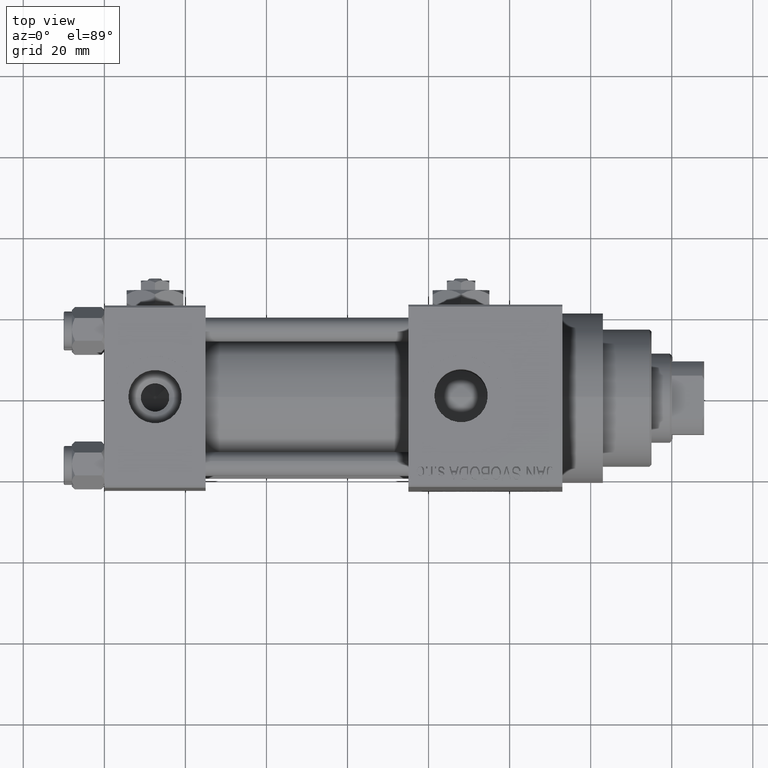
[diagram: clean part render]
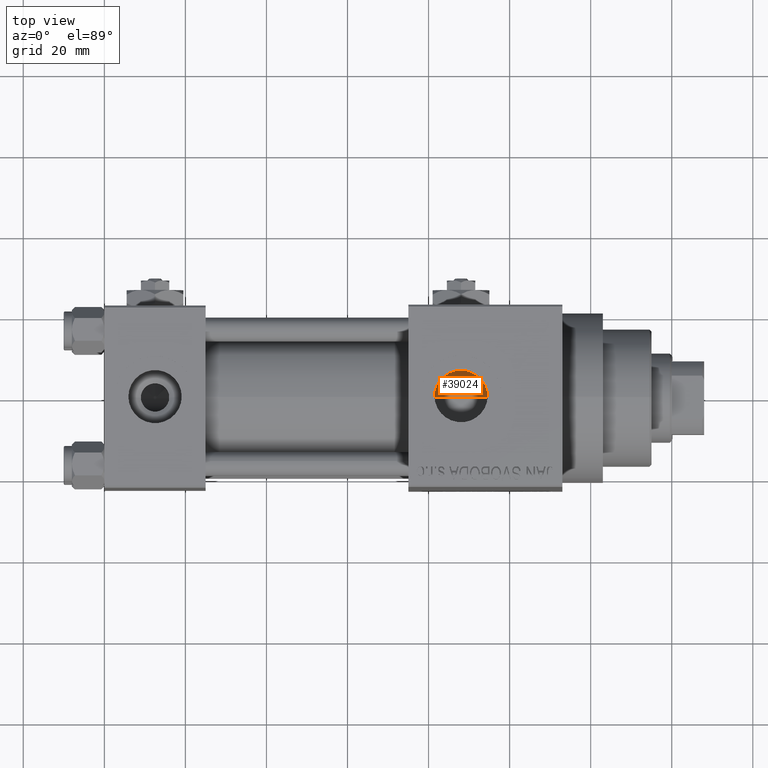
[diagram: same view with one face highlighted and labeled with its STEP entity id]
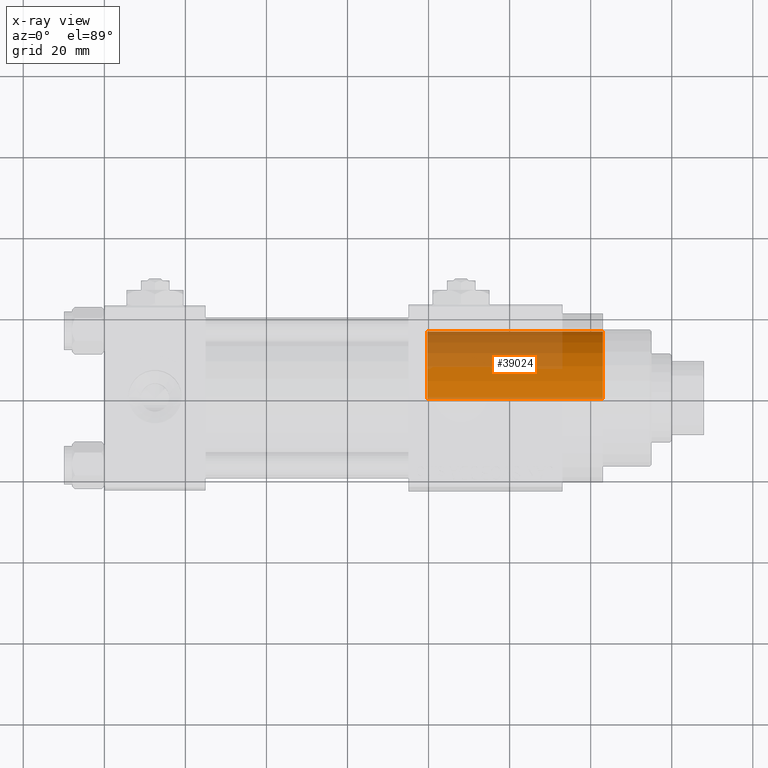
[diagram: x-ray of the same camera — body ghosted, the highlighted face saturated]
A machine part, top view. The second image highlights one B-rep face of the part: STEP entity #39024.
The next image is the same camera in x-ray: the body ghosted, the highlighted face saturated — about 45% of this face is hidden behind the body in this view.
In plain terms, the highlighted cylindrical surface (partial cylindrical patch) has radius 16.5 mm, axis along (-1, 0, 0).
Its self-contained STEP definition (entity closure, byte-faithful):
#1567 = DIRECTION ( 'NONE',  ( -1.000000000000000000, 0.000000000000000000, 0.000000000000000000 ) ) ;
#1678 = DIRECTION ( 'NONE',  ( -0.000000000000000000, -0.000000000000000000, -1.000000000000000000 ) ) ;
#3643 = DIRECTION ( 'NONE',  ( 1.000000000000000000, 0.000000000000000000, 0.000000000000000000 ) ) ;
#4272 = CARTESIAN_POINT ( 'NONE',  ( 0.000000000000000000, 0.000000000000000000, 43.25999999999999801 ) ) ;
#6731 = VERTEX_POINT ( 'NONE', #26738 ) ;
#7975 = CARTESIAN_POINT ( 'NONE',  ( 16.50000000000000000, 2.020667218593133100E-15, 0.000000000000000000 ) ) ;
#8110 = CARTESIAN_POINT ( 'NONE',  ( 0.000000000000000000, 0.000000000000000000, 0.000000000000000000 ) ) ;
#8961 = CARTESIAN_POINT ( 'NONE',  ( 16.50000000000000000, 2.020667218593133100E-15, 43.25999999999999801 ) ) ;
#9236 = CARTESIAN_POINT ( 'NONE',  ( 16.50000000000000000, 2.020667218593133100E-15, 43.25999999999999801 ) ) ;
#10894 = ORIENTED_EDGE ( 'NONE', *, *, #11307, .F. ) ;
#11307 = EDGE_CURVE ( 'NONE', #33133, #47171, #35531, .T. ) ;
#12324 = AXIS2_PLACEMENT_3D ( 'NONE', #8110, #38397, #3643 ) ;
#13220 = ORIENTED_EDGE ( 'NONE', *, *, #16885, .F. ) ;
#16240 = EDGE_CURVE ( 'NONE', #6731, #27558, #23761, .T. ) ;
#16450 = FACE_OUTER_BOUND ( 'NONE', #19413, .T. ) ;
#16885 = EDGE_CURVE ( 'NONE', #6731, #33133, #44768, .T. ) ;
#17043 = CIRCLE ( 'NONE', #12324, 16.50000000000000000 ) ;
#18677 = DIRECTION ( 'NONE',  ( 0.000000000000000000, 0.000000000000000000, 1.000000000000000000 ) ) ;
#19413 = EDGE_LOOP ( 'NONE', ( #10894, #13220, #21665, #26863 ) ) ;
#21665 = ORIENTED_EDGE ( 'NONE', *, *, #16240, .T. ) ;
#21735 = AXIS2_PLACEMENT_3D ( 'NONE', #4272, #18677, #33858 ) ;
#22794 = EDGE_CURVE ( 'NONE', #27558, #47171, #17043, .T. ) ;
#23761 = LINE ( 'NONE', #32242, #45501 ) ;
#24406 = DIRECTION ( 'NONE',  ( -0.000000000000000000, -0.000000000000000000, -1.000000000000000000 ) ) ;
#26738 = CARTESIAN_POINT ( 'NONE',  ( -16.50000000000000000, 0.000000000000000000, 43.25999999999999801 ) ) ;
#26863 = ORIENTED_EDGE ( 'NONE', *, *, #22794, .T. ) ;
#27558 = VERTEX_POINT ( 'NONE', #39820 ) ;
#31577 = DIRECTION ( 'NONE',  ( -0.000000000000000000, -0.000000000000000000, -1.000000000000000000 ) ) ;
#31915 = VECTOR ( 'NONE', #31577, 1000.000000000000000 ) ;
#32242 = CARTESIAN_POINT ( 'NONE',  ( -16.50000000000000000, 0.000000000000000000, 43.25999999999999801 ) ) ;
#33133 = VERTEX_POINT ( 'NONE', #9236 ) ;
#33858 = DIRECTION ( 'NONE',  ( 1.000000000000000000, 0.000000000000000000, 0.000000000000000000 ) ) ;
#35531 = LINE ( 'NONE', #8961, #31915 ) ;
#38397 = DIRECTION ( 'NONE',  ( 0.000000000000000000, 0.000000000000000000, 1.000000000000000000 ) ) ;
#39024 = ADVANCED_FACE ( 'NONE', ( #16450 ), #40064, .T. ) ;
#39820 = CARTESIAN_POINT ( 'NONE',  ( -16.50000000000000000, 0.000000000000000000, 0.000000000000000000 ) ) ;
#40064 = CYLINDRICAL_SURFACE ( 'NONE', #47826, 16.50000000000000000 ) ;
#43050 = CARTESIAN_POINT ( 'NONE',  ( 0.000000000000000000, 0.000000000000000000, 43.25999999999999801 ) ) ;
#44768 = CIRCLE ( 'NONE', #21735, 16.50000000000000000 ) ;
#45501 = VECTOR ( 'NONE', #1678, 1000.000000000000000 ) ;
#47171 = VERTEX_POINT ( 'NONE', #7975 ) ;
#47826 = AXIS2_PLACEMENT_3D ( 'NONE', #43050, #24406, #1567 ) ;